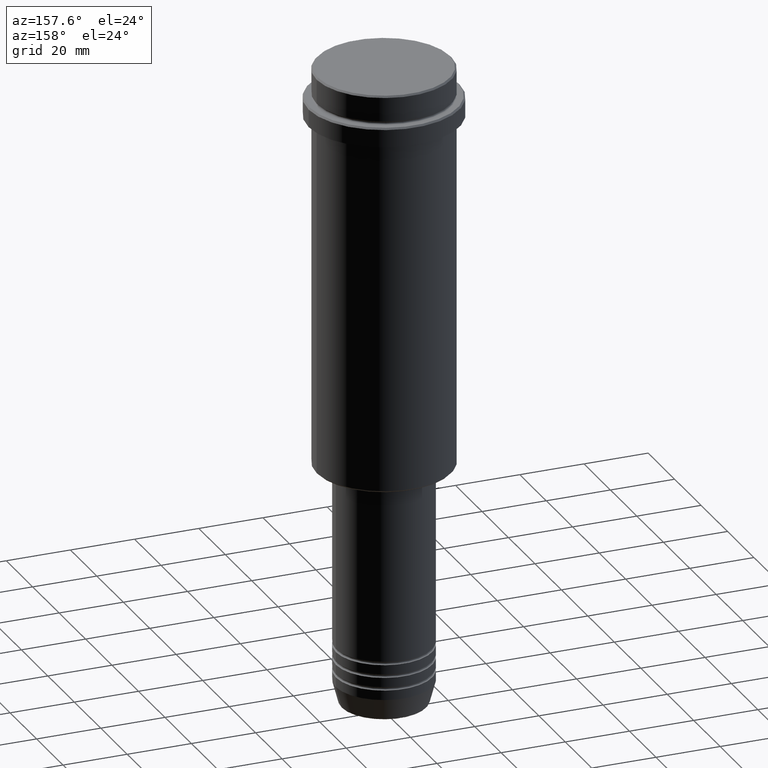
[diagram: clean part render]
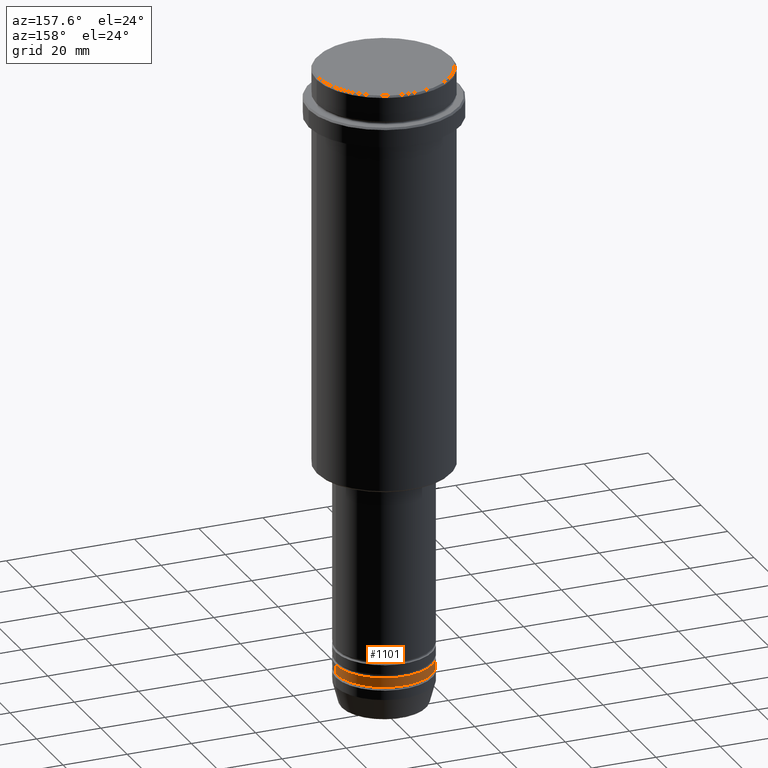
[diagram: same view with one face highlighted and labeled with its STEP entity id]
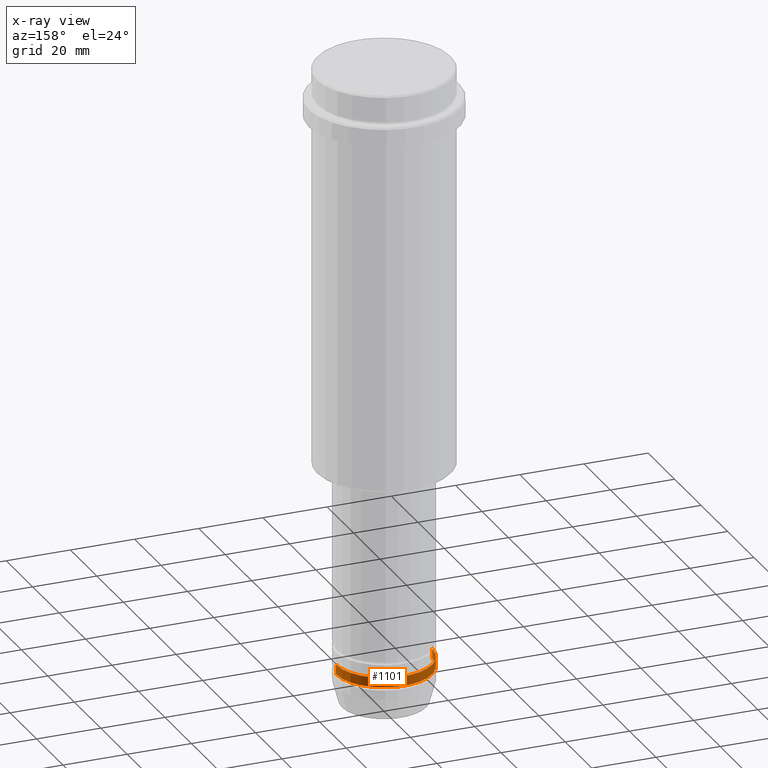
[diagram: x-ray of the same camera — body ghosted, the highlighted face saturated]
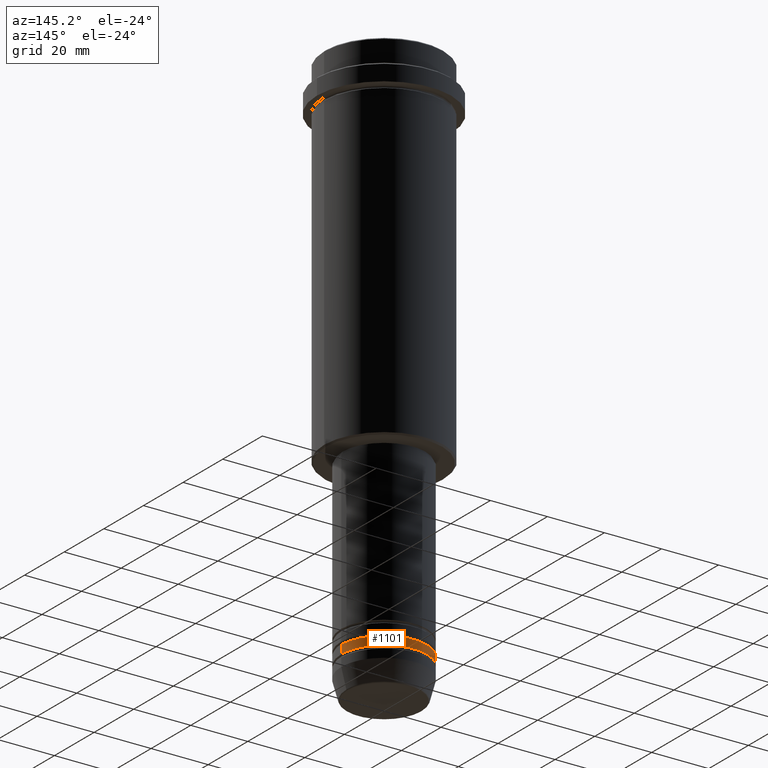
[diagram: same view with one face highlighted and labeled with its STEP entity id]
A machine part, auxiliary view. The second image highlights one B-rep face of the part: STEP entity #1101.
The next image is the same camera in x-ray: the body ghosted, the highlighted face saturated — about 0% of this face is hidden behind the body in this view.
A second angle (auxiliary view) of the same face is appended — the face is thin or edge-on in the first view.
In plain terms, the highlighted cylindrical surface (partial cylindrical patch) has radius 15 mm, axis along (-0, -0, 1).
Its self-contained STEP definition (entity closure, byte-faithful):
#1 = VERTEX_POINT ( 'NONE', #1147 ) ;
#85 = AXIS2_PLACEMENT_3D ( 'NONE', #183, #1155, #1253 ) ;
#118 = VERTEX_POINT ( 'NONE', #1042 ) ;
#125 = ORIENTED_EDGE ( 'NONE', *, *, #834, .F. ) ;
#183 = CARTESIAN_POINT ( 'NONE',  ( 0.000000000000000000, 0.000000000000000000, 0.000000000000000000 ) ) ;
#212 = DIRECTION ( 'NONE',  ( 1.000000000000000000, 0.000000000000000000, 0.000000000000000000 ) ) ;
#217 = DIRECTION ( 'NONE',  ( -0.000000000000000000, -0.000000000000000000, 1.000000000000000000 ) ) ;
#251 = DIRECTION ( 'NONE',  ( 1.000000000000000000, 0.000000000000000000, 0.000000000000000000 ) ) ;
#279 = EDGE_CURVE ( 'NONE', #308, #1, #587, .T. ) ;
#287 = AXIS2_PLACEMENT_3D ( 'NONE', #899, #704, #251 ) ;
#308 = VERTEX_POINT ( 'NONE', #1192 ) ;
#314 = CARTESIAN_POINT ( 'NONE',  ( 0.000000000000000000, 0.000000000000000000, -188.9999999999998863 ) ) ;
#320 = EDGE_CURVE ( 'NONE', #1, #118, #447, .T. ) ;
#382 = EDGE_CURVE ( 'NONE', #1098, #118, #773, .T. ) ;
#440 = CARTESIAN_POINT ( 'NONE',  ( -15.00000000000000000, 1.836970198721029589E-15, 0.000000000000000000 ) ) ;
#447 = LINE ( 'NONE', #440, #520 ) ;
#520 = VECTOR ( 'NONE', #762, 1000.000000000000000 ) ;
#587 = CIRCLE ( 'NONE', #852, 15.00000000000000000 ) ;
#603 = FACE_OUTER_BOUND ( 'NONE', #806, .T. ) ;
#667 = ORIENTED_EDGE ( 'NONE', *, *, #382, .F. ) ;
#704 = DIRECTION ( 'NONE',  ( -0.000000000000000000, -0.000000000000000000, 1.000000000000000000 ) ) ;
#756 = LINE ( 'NONE', #1186, #1071 ) ;
#762 = DIRECTION ( 'NONE',  ( -0.000000000000000000, -0.000000000000000000, 1.000000000000000000 ) ) ;
#773 = CIRCLE ( 'NONE', #287, 15.00000000000000000 ) ;
#806 = EDGE_LOOP ( 'NONE', ( #1311, #1370, #667, #125 ) ) ;
#828 = CYLINDRICAL_SURFACE ( 'NONE', #85, 15.00000000000000000 ) ;
#834 = EDGE_CURVE ( 'NONE', #308, #1098, #756, .T. ) ;
#852 = AXIS2_PLACEMENT_3D ( 'NONE', #314, #1097, #212 ) ;
#899 = CARTESIAN_POINT ( 'NONE',  ( 0.000000000000000000, 0.000000000000000000, -185.9999999999998863 ) ) ;
#1033 = CARTESIAN_POINT ( 'NONE',  ( 15.00000000000000000, 0.000000000000000000, -185.9999999999998863 ) ) ;
#1042 = CARTESIAN_POINT ( 'NONE',  ( -15.00000000000000000, 1.836970198721029589E-15, -185.9999999999998863 ) ) ;
#1071 = VECTOR ( 'NONE', #217, 1000.000000000000000 ) ;
#1097 = DIRECTION ( 'NONE',  ( -0.000000000000000000, -0.000000000000000000, 1.000000000000000000 ) ) ;
#1098 = VERTEX_POINT ( 'NONE', #1033 ) ;
#1101 = ADVANCED_FACE ( 'NONE', ( #603 ), #828, .T. ) ;
#1147 = CARTESIAN_POINT ( 'NONE',  ( -15.00000000000000000, 1.836970198721029589E-15, -188.9999999999998863 ) ) ;
#1155 = DIRECTION ( 'NONE',  ( -0.000000000000000000, -0.000000000000000000, 1.000000000000000000 ) ) ;
#1186 = CARTESIAN_POINT ( 'NONE',  ( 15.00000000000000000, 0.000000000000000000, 0.000000000000000000 ) ) ;
#1192 = CARTESIAN_POINT ( 'NONE',  ( 15.00000000000000000, 0.000000000000000000, -188.9999999999998863 ) ) ;
#1253 = DIRECTION ( 'NONE',  ( 1.000000000000000000, 0.000000000000000000, 0.000000000000000000 ) ) ;
#1311 = ORIENTED_EDGE ( 'NONE', *, *, #279, .T. ) ;
#1370 = ORIENTED_EDGE ( 'NONE', *, *, #320, .T. ) ;